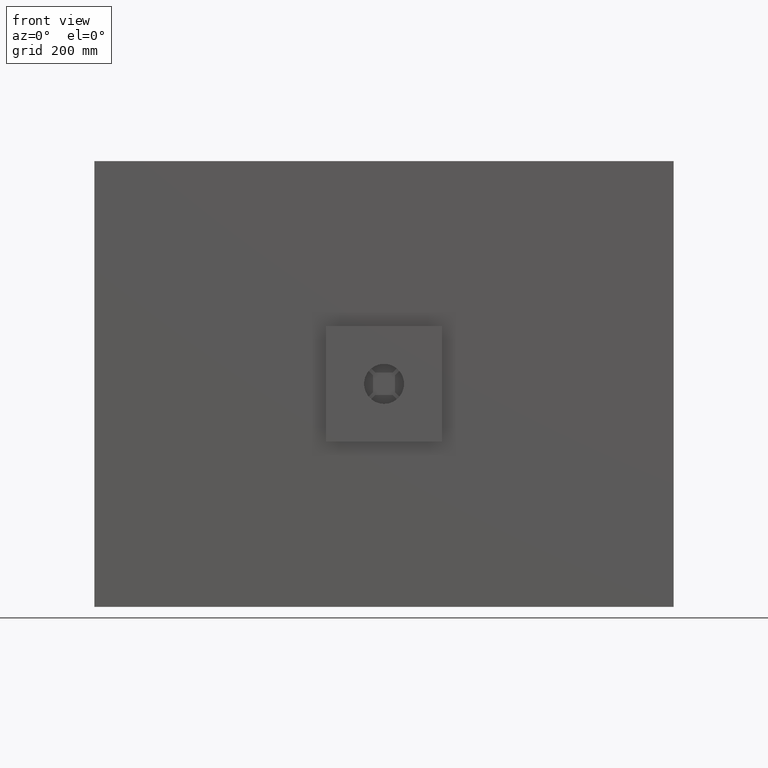
[diagram: clean part render]
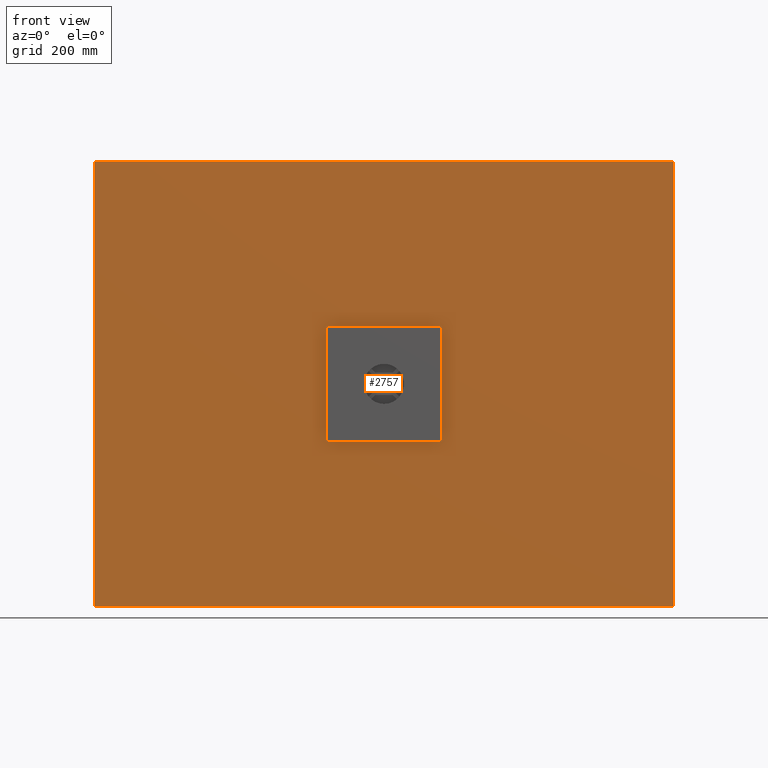
[diagram: same view with one face highlighted and labeled with its STEP entity id]
A machine part, front view. The second image highlights one B-rep face of the part: STEP entity #2757.
In plain terms, the highlighted planar face has unit normal (0, 1, 0).
Its self-contained STEP definition (entity closure, byte-faithful):
#19 = VECTOR ( 'NONE', #2789, 1000.000000000000000 ) ;
#65 = VERTEX_POINT ( 'NONE', #1677 ) ;
#160 = VECTOR ( 'NONE', #1824, 1000.000000000000000 ) ;
#197 = VERTEX_POINT ( 'NONE', #716 ) ;
#232 = AXIS2_PLACEMENT_3D ( 'NONE', #1776, #1537, #1536 ) ;
#272 = FACE_BOUND ( 'NONE', #1450, .T. ) ;
#312 = DIRECTION ( 'NONE',  ( 1.110223024625156500E-016, 0.0000000000000000000, 1.000000000000000000 ) ) ;
#317 = CARTESIAN_POINT ( 'NONE',  ( -650.0000000000000000, 0.0000000000000000000, -499.9999999999997700 ) ) ;
#349 = CARTESIAN_POINT ( 'NONE',  ( 650.0000000000000000, 0.0000000000000000000, -499.9999999999997700 ) ) ;
#368 = CARTESIAN_POINT ( 'NONE',  ( 650.0000000000000000, 0.0000000000000000000, -499.9999999999997700 ) ) ;
#390 = DIRECTION ( 'NONE',  ( -3.330669073875469600E-016, -0.0000000000000000000, -1.000000000000000000 ) ) ;
#409 = CIRCLE ( 'NONE', #2459, 2.500000000000002200 ) ;
#437 = VERTEX_POINT ( 'NONE', #1992 ) ;
#545 = VERTEX_POINT ( 'NONE', #590 ) ;
#578 = CARTESIAN_POINT ( 'NONE',  ( -649.9999999999998900, 0.0000000000000000000, 500.0000000000002300 ) ) ;
#590 = CARTESIAN_POINT ( 'NONE',  ( 77.50000000000007100, 0.0000000000000000000, -79.99999999999982900 ) ) ;
#593 = VERTEX_POINT ( 'NONE', #349 ) ;
#594 = CARTESIAN_POINT ( 'NONE',  ( -79.99999999999990100, 0.0000000000000000000, 77.50000000000027000 ) ) ;
#630 = CARTESIAN_POINT ( 'NONE',  ( 80.00000000000008500, 0.0000000000000000000, -77.49999999999984400 ) ) ;
#692 = LINE ( 'NONE', #1800, #160 ) ;
#694 = DIRECTION ( 'NONE',  ( -3.581364595565019400E-016, -0.0000000000000000000, -1.000000000000000000 ) ) ;
#703 = CARTESIAN_POINT ( 'NONE',  ( 650.0000000000003400, 0.0000000000000000000, 500.0000000000002300 ) ) ;
#716 = CARTESIAN_POINT ( 'NONE',  ( 77.50000000000012800, 0.0000000000000000000, 80.00000000000025600 ) ) ;
#757 = LINE ( 'NONE', #797, #3270 ) ;
#797 = CARTESIAN_POINT ( 'NONE',  ( 80.00000000000007100, 0.0000000000000000000, -77.49999999999981500 ) ) ;
#832 = EDGE_CURVE ( 'NONE', #1001, #545, #2283, .T. ) ;
#896 = ORIENTED_EDGE ( 'NONE', *, *, #2326, .T. ) ;
#1001 = VERTEX_POINT ( 'NONE', #630 ) ;
#1026 = VERTEX_POINT ( 'NONE', #3222 ) ;
#1031 = EDGE_CURVE ( 'NONE', #545, #65, #2022, .T. ) ;
#1159 = VECTOR ( 'NONE', #2647, 1000.000000000000000 ) ;
#1168 = EDGE_CURVE ( 'NONE', #593, #2823, #3189, .T. ) ;
#1224 = ORIENTED_EDGE ( 'NONE', *, *, #2149, .T. ) ;
#1342 = EDGE_CURVE ( 'NONE', #2361, #3084, #692, .T. ) ;
#1345 = CIRCLE ( 'NONE', #2055, 2.500000000000002200 ) ;
#1362 = EDGE_CURVE ( 'NONE', #197, #2307, #1345, .T. ) ;
#1383 = DIRECTION ( 'NONE',  ( 0.0000000000000000000, 0.0000000000000000000, 1.000000000000000000 ) ) ;
#1399 = ORIENTED_EDGE ( 'NONE', *, *, #1362, .T. ) ;
#1417 = DIRECTION ( 'NONE',  ( -1.000000000000000000, -0.0000000000000000000, 3.581364595565021900E-016 ) ) ;
#1423 = ORIENTED_EDGE ( 'NONE', *, *, #3203, .T. ) ;
#1430 = VECTOR ( 'NONE', #312, 1000.000000000000000 ) ;
#1446 = LINE ( 'NONE', #1635, #2212 ) ;
#1450 = EDGE_LOOP ( 'NONE', ( #1423, #1399, #896, #2402, #2540, #1224, #3291, #3285 ) ) ;
#1478 = CARTESIAN_POINT ( 'NONE',  ( -77.49999999999990100, 0.0000000000000000000, 77.50000000000027000 ) ) ;
#1536 = DIRECTION ( 'NONE',  ( 0.0000000000000000000, -0.0000000000000000000, 1.000000000000000000 ) ) ;
#1537 = DIRECTION ( 'NONE',  ( 0.0000000000000000000, 1.000000000000000000, 0.0000000000000000000 ) ) ;
#1565 = VERTEX_POINT ( 'NONE', #594 ) ;
#1593 = CIRCLE ( 'NONE', #2674, 2.500000000000002200 ) ;
#1635 = CARTESIAN_POINT ( 'NONE',  ( -77.49999999999990100, 0.0000000000000000000, 80.00000000000027000 ) ) ;
#1664 = DIRECTION ( 'NONE',  ( 0.0000000000000000000, 1.000000000000000000, 0.0000000000000000000 ) ) ;
#1673 = LINE ( 'NONE', #1911, #1159 ) ;
#1677 = CARTESIAN_POINT ( 'NONE',  ( -77.49999999999990100, 0.0000000000000000000, -79.99999999999978700 ) ) ;
#1776 = CARTESIAN_POINT ( 'NONE',  ( -649.9999999999998900, 0.0000000000000000000, 500.0000000000002300 ) ) ;
#1796 = EDGE_CURVE ( 'NONE', #1565, #437, #409, .T. ) ;
#1800 = CARTESIAN_POINT ( 'NONE',  ( -649.9999999999998900, 0.0000000000000000000, 500.0000000000002300 ) ) ;
#1824 = DIRECTION ( 'NONE',  ( 1.000000000000000000, 0.0000000000000000000, 0.0000000000000000000 ) ) ;
#1883 = PLANE ( 'NONE',  #232 ) ;
#1911 = CARTESIAN_POINT ( 'NONE',  ( -79.99999999999990100, 0.0000000000000000000, -77.49999999999978700 ) ) ;
#1924 = DIRECTION ( 'NONE',  ( 0.0000000000000000000, 0.0000000000000000000, 1.000000000000000000 ) ) ;
#1992 = CARTESIAN_POINT ( 'NONE',  ( -77.49999999999990100, 0.0000000000000000000, 80.00000000000027000 ) ) ;
#2022 = LINE ( 'NONE', #2950, #2357 ) ;
#2055 = AXIS2_PLACEMENT_3D ( 'NONE', #2585, #2604, #2855 ) ;
#2074 = ORIENTED_EDGE ( 'NONE', *, *, #1168, .F. ) ;
#2125 = ORIENTED_EDGE ( 'NONE', *, *, #3161, .F. ) ;
#2134 = DIRECTION ( 'NONE',  ( 0.0000000000000000000, 0.0000000000000000000, -1.000000000000000000 ) ) ;
#2146 = DIRECTION ( 'NONE',  ( 0.0000000000000000000, 1.000000000000000000, 0.0000000000000000000 ) ) ;
#2149 = EDGE_CURVE ( 'NONE', #65, #1026, #1593, .T. ) ;
#2154 = LINE ( 'NONE', #317, #1430 ) ;
#2166 = DIRECTION ( 'NONE',  ( 0.0000000000000000000, 1.000000000000000000, -0.0000000000000000000 ) ) ;
#2167 = CARTESIAN_POINT ( 'NONE',  ( 77.50000000000007100, 0.0000000000000000000, -77.49999999999981500 ) ) ;
#2170 = ORIENTED_EDGE ( 'NONE', *, *, #3162, .F. ) ;
#2174 = DIRECTION ( 'NONE',  ( 1.000000000000000000, 0.0000000000000000000, -8.953411488912551000E-017 ) ) ;
#2208 = LINE ( 'NONE', #368, #3022 ) ;
#2212 = VECTOR ( 'NONE', #2174, 1000.000000000000000 ) ;
#2264 = AXIS2_PLACEMENT_3D ( 'NONE', #2167, #2166, #2134 ) ;
#2269 = ORIENTED_EDGE ( 'NONE', *, *, #1342, .F. ) ;
#2283 = CIRCLE ( 'NONE', #2264, 2.500000000000002200 ) ;
#2307 = VERTEX_POINT ( 'NONE', #2481 ) ;
#2326 = EDGE_CURVE ( 'NONE', #2307, #1001, #757, .T. ) ;
#2357 = VECTOR ( 'NONE', #1417, 1000.000000000000000 ) ;
#2361 = VERTEX_POINT ( 'NONE', #578 ) ;
#2402 = ORIENTED_EDGE ( 'NONE', *, *, #832, .T. ) ;
#2459 = AXIS2_PLACEMENT_3D ( 'NONE', #1478, #1664, #1383 ) ;
#2481 = CARTESIAN_POINT ( 'NONE',  ( 80.00000000000012800, 0.0000000000000000000, 77.50000000000027000 ) ) ;
#2540 = ORIENTED_EDGE ( 'NONE', *, *, #1031, .T. ) ;
#2585 = CARTESIAN_POINT ( 'NONE',  ( 77.50000000000012800, 0.0000000000000000000, 77.50000000000027000 ) ) ;
#2598 = EDGE_LOOP ( 'NONE', ( #2170, #2074, #2125, #2269 ) ) ;
#2604 = DIRECTION ( 'NONE',  ( 0.0000000000000000000, 1.000000000000000000, 0.0000000000000000000 ) ) ;
#2642 = EDGE_CURVE ( 'NONE', #1026, #1565, #1673, .T. ) ;
#2647 = DIRECTION ( 'NONE',  ( 0.0000000000000000000, 0.0000000000000000000, 1.000000000000000000 ) ) ;
#2674 = AXIS2_PLACEMENT_3D ( 'NONE', #2943, #2146, #1924 ) ;
#2757 = ADVANCED_FACE ( 'NONE', ( #272, #3172 ), #1883, .F. ) ;
#2789 = DIRECTION ( 'NONE',  ( -1.000000000000000000, -0.0000000000000000000, -0.0000000000000000000 ) ) ;
#2823 = VERTEX_POINT ( 'NONE', #3250 ) ;
#2838 = CARTESIAN_POINT ( 'NONE',  ( -650.0000000000000000, 0.0000000000000000000, -499.9999999999997700 ) ) ;
#2855 = DIRECTION ( 'NONE',  ( 0.0000000000000000000, 0.0000000000000000000, 1.000000000000000000 ) ) ;
#2943 = CARTESIAN_POINT ( 'NONE',  ( -77.49999999999990100, 0.0000000000000000000, -77.49999999999978700 ) ) ;
#2950 = CARTESIAN_POINT ( 'NONE',  ( -77.49999999999990100, 0.0000000000000000000, -79.99999999999977300 ) ) ;
#3022 = VECTOR ( 'NONE', #390, 1000.000000000000000 ) ;
#3084 = VERTEX_POINT ( 'NONE', #703 ) ;
#3161 = EDGE_CURVE ( 'NONE', #3084, #593, #2208, .T. ) ;
#3162 = EDGE_CURVE ( 'NONE', #2823, #2361, #2154, .T. ) ;
#3172 = FACE_OUTER_BOUND ( 'NONE', #2598, .T. ) ;
#3189 = LINE ( 'NONE', #2838, #19 ) ;
#3203 = EDGE_CURVE ( 'NONE', #437, #197, #1446, .T. ) ;
#3222 = CARTESIAN_POINT ( 'NONE',  ( -79.99999999999990100, 0.0000000000000000000, -77.49999999999978700 ) ) ;
#3250 = CARTESIAN_POINT ( 'NONE',  ( -650.0000000000000000, 0.0000000000000000000, -499.9999999999997700 ) ) ;
#3270 = VECTOR ( 'NONE', #694, 1000.000000000000000 ) ;
#3285 = ORIENTED_EDGE ( 'NONE', *, *, #1796, .T. ) ;
#3291 = ORIENTED_EDGE ( 'NONE', *, *, #2642, .T. ) ;